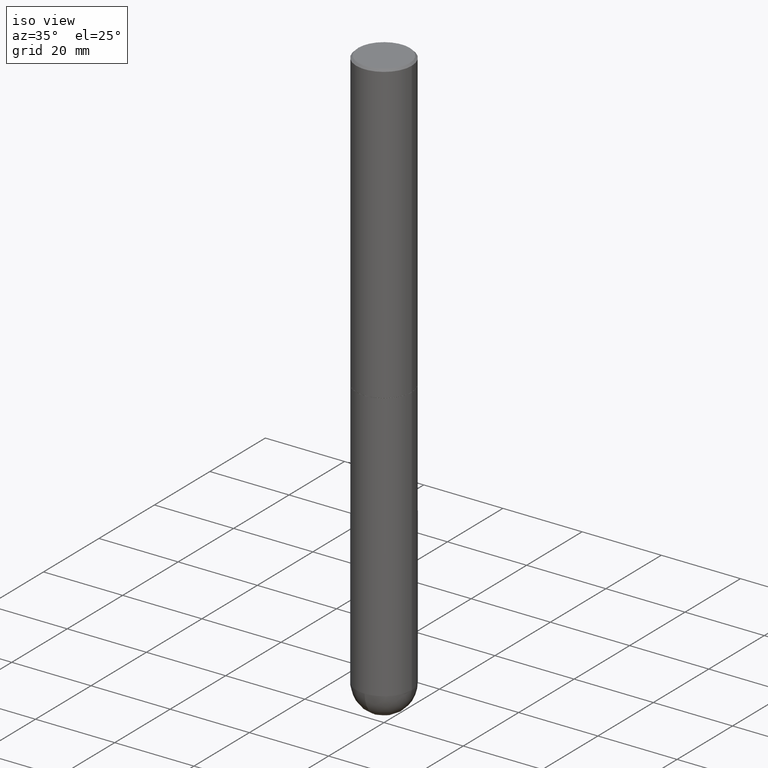
[diagram: clean part render]
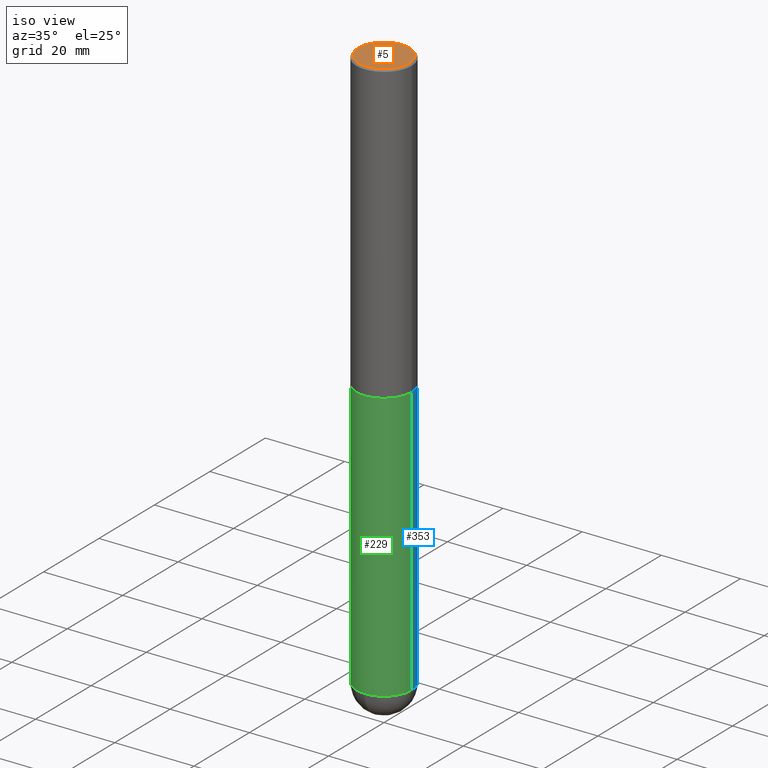
[diagram: same view with three faces highlighted in distinct colors, each labeled with its STEP entity id]
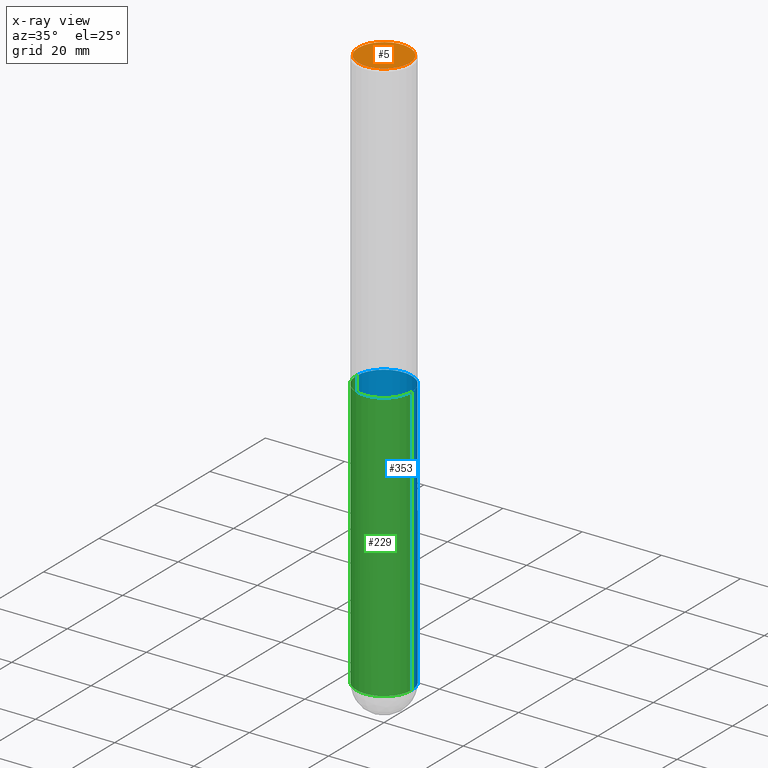
[diagram: x-ray of the same camera — body ghosted, the three highlighted faces saturated]
A machine part, iso view with three faces highlighted in distinct colors.
The next image is the same camera in x-ray (body ghosted, the three faces saturated) — at least one of them is partly hidden behind the body in this view.
Their STEP definitions:

[orange] entity #5 — the highlighted planar face has unit normal (0, -0, -1).
#3 = AXIS2_PLACEMENT_3D ( 'NONE', #16, #52, #360 ) ;
#5 = ADVANCED_FACE ( 'NONE', ( #240 ), #207, .F. ) ;
#9 = AXIS2_PLACEMENT_3D ( 'NONE', #410, #282, #41 ) ;
#10 = EDGE_CURVE ( 'NONE', #42, #20, #212, .T. ) ;
#16 = CARTESIAN_POINT ( 'NONE',  ( 1.784845260416611119E-15, 0.2556000000000002159, -9.948669299707185608E-16 ) ) ;
#20 = VERTEX_POINT ( 'NONE', #269 ) ;
#41 = DIRECTION ( 'NONE',  ( 1.000000000000000000, -6.982962677686265922E-15, 4.876943595080608811E-29 ) ) ;
#42 = VERTEX_POINT ( 'NONE', #60 ) ;
#52 = DIRECTION ( 'NONE',  ( 2.438088387897960049E-29, -3.491481338843145188E-15, -1.000000000000000000 ) ) ;
#60 = CARTESIAN_POINT ( 'NONE',  ( 0.2556000000000002159, -1.857063081596551608E-15, -2.048885995248069963E-16 ) ) ;
#70 = ORIENTED_EDGE ( 'NONE', *, *, #224, .T. ) ;
#114 = AXIS2_PLACEMENT_3D ( 'NONE', #331, #176, #147 ) ;
#120 = ORIENTED_EDGE ( 'NONE', *, *, #10, .T. ) ;
#147 = DIRECTION ( 'NONE',  ( 1.000000000000000000, -6.982962677686265922E-15, 4.876943595080608811E-29 ) ) ;
#176 = DIRECTION ( 'NONE',  ( -2.445468806185136597E-29, 3.491481338843145583E-15, 1.000000000000000000 ) ) ;
#194 = CIRCLE ( 'NONE', #9, 0.2556000000000002159 ) ;
#207 = PLANE ( 'NONE',  #3 ) ;
#212 = CIRCLE ( 'NONE', #114, 0.2556000000000002159 ) ;
#224 = EDGE_CURVE ( 'NONE', #20, #42, #194, .T. ) ;
#240 = FACE_OUTER_BOUND ( 'NONE', #357, .T. ) ;
#269 = CARTESIAN_POINT ( 'NONE',  ( -0.2556000000000002159, 1.819760073805041190E-15, -2.048885995248323632E-16 ) ) ;
#282 = DIRECTION ( 'NONE',  ( -2.445468806185136597E-29, 3.491481338843145583E-15, 1.000000000000000000 ) ) ;
#331 = CARTESIAN_POINT ( 'NONE',  ( 5.010486788809054823E-45, -7.153647217826146999E-31, -2.048885995248197414E-16 ) ) ;
#357 = EDGE_LOOP ( 'NONE', ( #70, #120 ) ) ;
#360 = DIRECTION ( 'NONE',  ( -1.000000000000000000, 6.982962677686265922E-15, -4.876176775795935793E-29 ) ) ;
#410 = CARTESIAN_POINT ( 'NONE',  ( 5.010486788809054823E-45, -7.153647217826146999E-31, -2.048885995248197414E-16 ) ) ;

[blue] entity #353 — the highlighted cylindrical surface (edge-blend (fillet) strip) has radius 7.0002 mm, axis along (-0, 0, 1).
#11 = DIRECTION ( 'NONE',  ( 1.000000000000000000, -6.982962677686267499E-15, 4.876176775795935793E-29 ) ) ;
#21 = EDGE_CURVE ( 'NONE', #317, #375, #397, .T. ) ;
#26 = DIRECTION ( 'NONE',  ( 1.000000000000000000, -6.982962677686264344E-15, 0.000000000000000000 ) ) ;
#32 = CARTESIAN_POINT ( 'NONE',  ( -0.2756000000000000116, -1.302473808962275237E-14, -2.952700000000000102 ) ) ;
#43 = AXIS2_PLACEMENT_3D ( 'NONE', #152, #405, #156 ) ;
#45 = ORIENTED_EDGE ( 'NONE', *, *, #318, .T. ) ;
#49 = FACE_OUTER_BOUND ( 'NONE', #72, .T. ) ;
#57 = AXIS2_PLACEMENT_3D ( 'NONE', #263, #293, #11 ) ;
#58 = ORIENTED_EDGE ( 'NONE', *, *, #21, .F. ) ;
#72 = EDGE_LOOP ( 'NONE', ( #182, #299, #266, #58, #45 ) ) ;
#86 = DIRECTION ( 'NONE',  ( -2.445468806185136877E-29, 3.491481338843145188E-15, 1.000000000000000000 ) ) ;
#113 = CYLINDRICAL_SURFACE ( 'NONE', #57, 0.2756000000000000671 ) ;
#119 = CARTESIAN_POINT ( 'NONE',  ( 0.2756000000000000671, -1.924504513970335743E-15, 1.343874319409360268E-29 ) ) ;
#122 = CIRCLE ( 'NONE', #43, 0.2756000000000000116 ) ;
#139 = LINE ( 'NONE', #202, #309 ) ;
#144 = CARTESIAN_POINT ( 'NONE',  ( 0.2756000000000000116, -1.223380146317248997E-14, -2.952700000000000102 ) ) ;
#152 = CARTESIAN_POINT ( 'NONE',  ( 7.220735744022852519E-29, -1.030929694920215502E-14, -2.952700000000000102 ) ) ;
#156 = DIRECTION ( 'NONE',  ( 1.000000000000000000, -6.982962677686265922E-15, 0.000000000000000000 ) ) ;
#161 = EDGE_CURVE ( 'NONE', #333, #313, #220, .T. ) ;
#166 = EDGE_CURVE ( 'NONE', #375, #385, #122, .T. ) ;
#182 = ORIENTED_EDGE ( 'NONE', *, *, #161, .T. ) ;
#202 = CARTESIAN_POINT ( 'NONE',  ( -0.2756000000000000671, 1.958255779754836589E-15, -1.355658510874252287E-29 ) ) ;
#220 = CIRCLE ( 'NONE', #314, 0.2756000000000000671 ) ;
#234 = CARTESIAN_POINT ( 'NONE',  ( 1.376774483194169922E-28, -1.965669078955302449E-14, -5.629900000000000126 ) ) ;
#247 = EDGE_CURVE ( 'NONE', #313, #385, #139, .T. ) ;
#259 = CARTESIAN_POINT ( 'NONE',  ( 1.924504513970471427E-15, 0.2755999999999801942, -5.629900000000001015 ) ) ;
#262 = DIRECTION ( 'NONE',  ( -2.445468806185136877E-29, 3.491481338843145188E-15, 1.000000000000000000 ) ) ;
#263 = CARTESIAN_POINT ( 'NONE',  ( 0.000000000000000000, 0.000000000000000000, 0.000000000000000000 ) ) ;
#266 = ORIENTED_EDGE ( 'NONE', *, *, #166, .F. ) ;
#276 = CARTESIAN_POINT ( 'NONE',  ( 1.376774483194169922E-28, -1.965669078955302449E-14, -5.629900000000000126 ) ) ;
#281 = VECTOR ( 'NONE', #86, 39.37007874015748143 ) ;
#293 = DIRECTION ( 'NONE',  ( -2.445468806185136597E-29, 3.491481338843145583E-15, 1.000000000000000000 ) ) ;
#299 = ORIENTED_EDGE ( 'NONE', *, *, #247, .T. ) ;
#306 = DIRECTION ( 'NONE',  ( -2.445468806185136597E-29, 3.491481338843145583E-15, 1.000000000000000000 ) ) ;
#309 = VECTOR ( 'NONE', #262, 39.37007874015748143 ) ;
#313 = VERTEX_POINT ( 'NONE', #396 ) ;
#314 = AXIS2_PLACEMENT_3D ( 'NONE', #276, #306, #26 ) ;
#317 = VERTEX_POINT ( 'NONE', #328 ) ;
#318 = EDGE_CURVE ( 'NONE', #317, #333, #372, .T. ) ;
#328 = CARTESIAN_POINT ( 'NONE',  ( 0.2756000000000000671, -1.690749838334792865E-14, -5.629900000000000126 ) ) ;
#333 = VERTEX_POINT ( 'NONE', #259 ) ;
#350 = DIRECTION ( 'NONE',  ( -2.445468806185136597E-29, 3.491481338843145583E-15, 1.000000000000000000 ) ) ;
#353 = ADVANCED_FACE ( 'NONE', ( #49 ), #113, .T. ) ;
#372 = CIRCLE ( 'NONE', #390, 0.2756000000000000671 ) ;
#375 = VERTEX_POINT ( 'NONE', #144 ) ;
#385 = VERTEX_POINT ( 'NONE', #32 ) ;
#390 = AXIS2_PLACEMENT_3D ( 'NONE', #234, #350, #392 ) ;
#392 = DIRECTION ( 'NONE',  ( 1.000000000000000000, -6.982962677686264344E-15, 0.000000000000000000 ) ) ;
#396 = CARTESIAN_POINT ( 'NONE',  ( -0.2756000000000000671, -1.302473808962275553E-14, -5.629900000000000126 ) ) ;
#397 = LINE ( 'NONE', #119, #281 ) ;
#405 = DIRECTION ( 'NONE',  ( -2.445468806185136597E-29, 3.491481338843145583E-15, 1.000000000000000000 ) ) ;

[green] entity #229 — the highlighted cylindrical surface (edge-blend (fillet) strip) has radius 7.0002 mm, axis along (-0, 0, 1).
#13 = ORIENTED_EDGE ( 'NONE', *, *, #201, .T. ) ;
#15 = CARTESIAN_POINT ( 'NONE',  ( 0.000000000000000000, 0.000000000000000000, 0.000000000000000000 ) ) ;
#21 = EDGE_CURVE ( 'NONE', #317, #375, #397, .T. ) ;
#32 = CARTESIAN_POINT ( 'NONE',  ( -0.2756000000000000116, -1.302473808962275237E-14, -2.952700000000000102 ) ) ;
#39 = DIRECTION ( 'NONE',  ( 1.000000000000000000, -6.982962677686264344E-15, 0.000000000000000000 ) ) ;
#46 = CYLINDRICAL_SURFACE ( 'NONE', #104, 0.2756000000000000671 ) ;
#62 = DIRECTION ( 'NONE',  ( -2.445468806185136597E-29, 3.491481338843145583E-15, 1.000000000000000000 ) ) ;
#66 = CARTESIAN_POINT ( 'NONE',  ( 7.220735744022852519E-29, -1.030929694920215502E-14, -2.952700000000000102 ) ) ;
#74 = ORIENTED_EDGE ( 'NONE', *, *, #407, .F. ) ;
#77 = DIRECTION ( 'NONE',  ( 1.000000000000000000, -6.982962677686267499E-15, 4.876176775795935793E-29 ) ) ;
#86 = DIRECTION ( 'NONE',  ( -2.445468806185136877E-29, 3.491481338843145188E-15, 1.000000000000000000 ) ) ;
#103 = AXIS2_PLACEMENT_3D ( 'NONE', #245, #159, #366 ) ;
#104 = AXIS2_PLACEMENT_3D ( 'NONE', #15, #236, #77 ) ;
#105 = CARTESIAN_POINT ( 'NONE',  ( 1.376774483194169922E-28, -1.965669078955302449E-14, -5.629900000000000126 ) ) ;
#110 = EDGE_CURVE ( 'NONE', #313, #137, #339, .T. ) ;
#119 = CARTESIAN_POINT ( 'NONE',  ( 0.2756000000000000671, -1.924504513970335743E-15, 1.343874319409360268E-29 ) ) ;
#130 = CIRCLE ( 'NONE', #351, 0.2756000000000000671 ) ;
#137 = VERTEX_POINT ( 'NONE', #310 ) ;
#139 = LINE ( 'NONE', #202, #309 ) ;
#143 = EDGE_LOOP ( 'NONE', ( #214, #304, #13, #174, #74 ) ) ;
#144 = CARTESIAN_POINT ( 'NONE',  ( 0.2756000000000000116, -1.223380146317248997E-14, -2.952700000000000102 ) ) ;
#159 = DIRECTION ( 'NONE',  ( -2.445468806185136597E-29, 3.491481338843145583E-15, 1.000000000000000000 ) ) ;
#174 = ORIENTED_EDGE ( 'NONE', *, *, #21, .T. ) ;
#190 = DIRECTION ( 'NONE',  ( 1.000000000000000000, -6.982962677686265922E-15, 0.000000000000000000 ) ) ;
#201 = EDGE_CURVE ( 'NONE', #137, #317, #130, .T. ) ;
#202 = CARTESIAN_POINT ( 'NONE',  ( -0.2756000000000000671, 1.958255779754836589E-15, -1.355658510874252287E-29 ) ) ;
#214 = ORIENTED_EDGE ( 'NONE', *, *, #247, .F. ) ;
#225 = AXIS2_PLACEMENT_3D ( 'NONE', #66, #62, #190 ) ;
#227 = DIRECTION ( 'NONE',  ( -2.445468806185136597E-29, 3.491481338843145583E-15, 1.000000000000000000 ) ) ;
#229 = ADVANCED_FACE ( 'NONE', ( #295 ), #46, .T. ) ;
#236 = DIRECTION ( 'NONE',  ( -2.445468806185136597E-29, 3.491481338843145583E-15, 1.000000000000000000 ) ) ;
#245 = CARTESIAN_POINT ( 'NONE',  ( 1.376774483194169922E-28, -1.965669078955302449E-14, -5.629900000000000126 ) ) ;
#247 = EDGE_CURVE ( 'NONE', #313, #385, #139, .T. ) ;
#256 = CIRCLE ( 'NONE', #225, 0.2756000000000000116 ) ;
#262 = DIRECTION ( 'NONE',  ( -2.445468806185136877E-29, 3.491481338843145188E-15, 1.000000000000000000 ) ) ;
#281 = VECTOR ( 'NONE', #86, 39.37007874015748143 ) ;
#295 = FACE_OUTER_BOUND ( 'NONE', #143, .T. ) ;
#304 = ORIENTED_EDGE ( 'NONE', *, *, #110, .T. ) ;
#309 = VECTOR ( 'NONE', #262, 39.37007874015748143 ) ;
#310 = CARTESIAN_POINT ( 'NONE',  ( -1.958255779754700116E-15, -0.2756000000000199956, -5.629899999999999238 ) ) ;
#313 = VERTEX_POINT ( 'NONE', #396 ) ;
#317 = VERTEX_POINT ( 'NONE', #328 ) ;
#328 = CARTESIAN_POINT ( 'NONE',  ( 0.2756000000000000671, -1.690749838334792865E-14, -5.629900000000000126 ) ) ;
#339 = CIRCLE ( 'NONE', #103, 0.2756000000000000671 ) ;
#351 = AXIS2_PLACEMENT_3D ( 'NONE', #105, #227, #39 ) ;
#366 = DIRECTION ( 'NONE',  ( 1.000000000000000000, -6.982962677686264344E-15, 0.000000000000000000 ) ) ;
#375 = VERTEX_POINT ( 'NONE', #144 ) ;
#385 = VERTEX_POINT ( 'NONE', #32 ) ;
#396 = CARTESIAN_POINT ( 'NONE',  ( -0.2756000000000000671, -1.302473808962275553E-14, -5.629900000000000126 ) ) ;
#397 = LINE ( 'NONE', #119, #281 ) ;
#407 = EDGE_CURVE ( 'NONE', #385, #375, #256, .T. ) ;